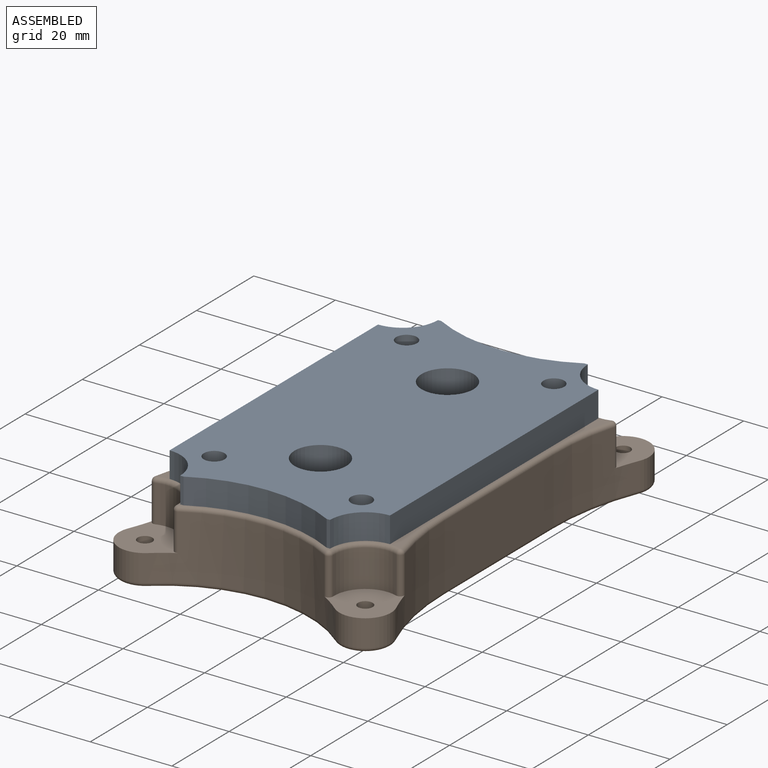
[diagram: assembled view]
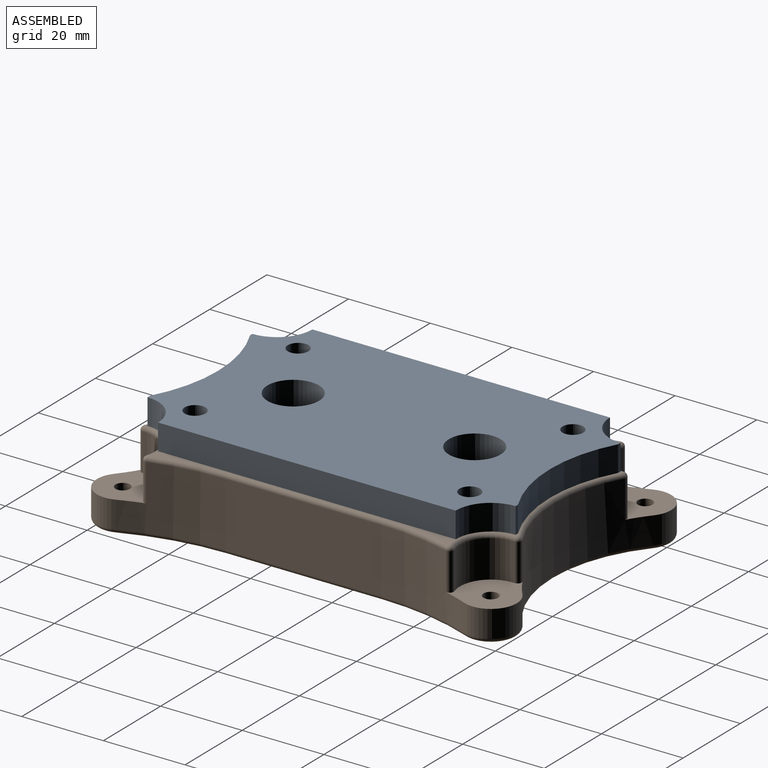
[diagram: assembled view, second angle]
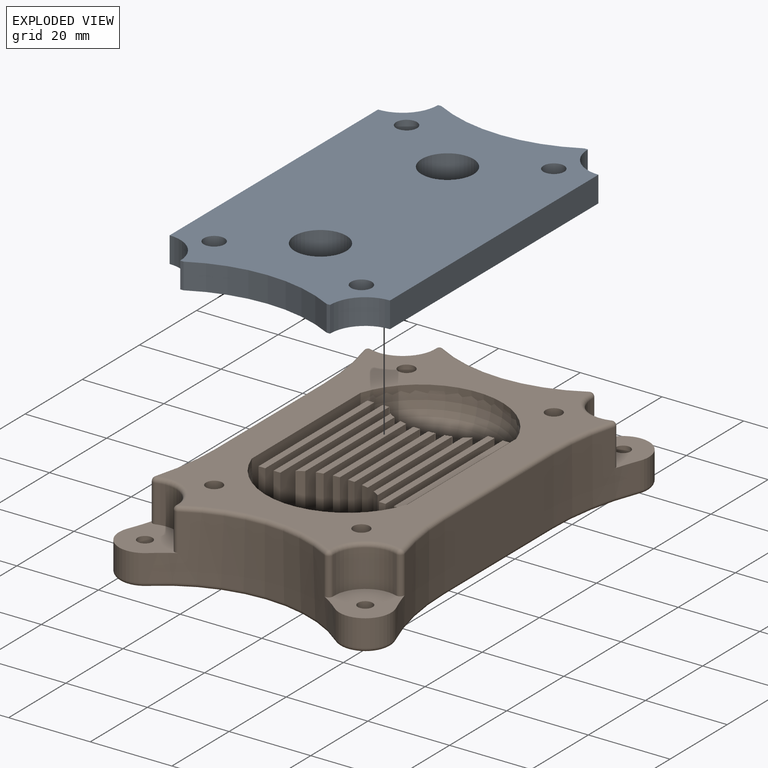
[diagram: exploded view]
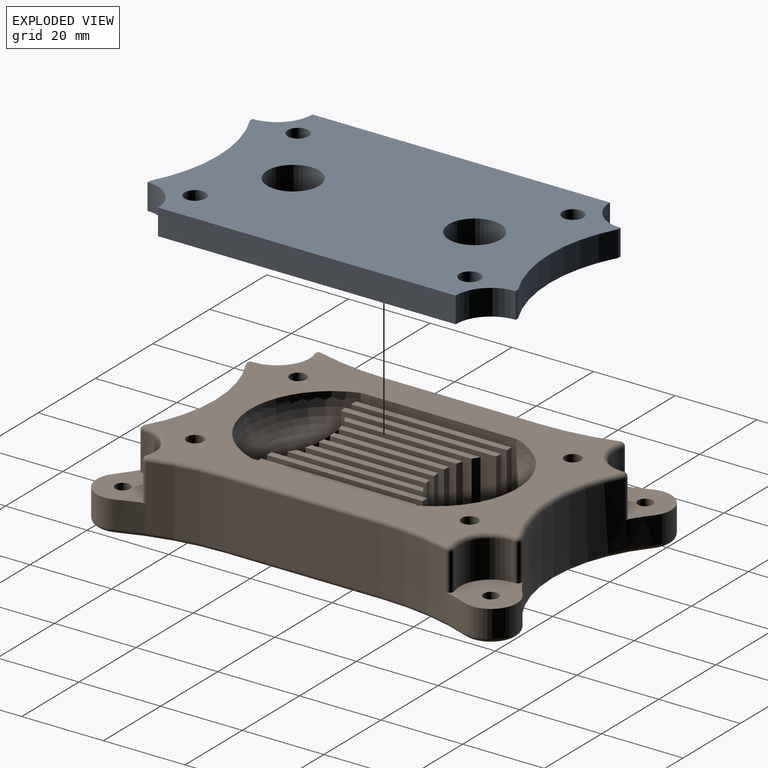
[diagram: exploded view, second angle]
ASSEMBLY  parts=2 mates=3
PART A: 20 faces, bbox 54x90.2x6.4 mm
  f0: plane 6.35x0.83mm, normal (0,1,0), area 5.3mm2, adj f6,f7,f13,f14
  f1: plane 6.35x0.83mm, normal (0,1,0), area 5.3mm2, adj f6,f7,f12,f13
  f2: plane 72.9x6.35mm, normal (-1,0,0), area 462.9mm2, adj f6,f7,f12,f17
  f3: plane 6.35x0.83mm, normal (0,-1,0), area 5.3mm2, adj f6,f7,f16,f17
  f4: plane 6.35x0.83mm, normal (0,-1,0), area 5.3mm2, adj f6,f7,f15,f16
  f5: plane 72.9x6.35mm, normal (1,0,0), area 462.9mm2, adj f6,f7,f14,f15
  f6: plane 90.17x53.98mm, normal (0,0,1), area 4087.8mm2, adj f0,f1,f2,f3,f4,f5,f8,f9
  f7: plane 90.17x53.98mm, normal (0,0,-1), area 4087.8mm2, adj f0,f1,f2,f3,f4,f5,f8,f9
  f8: cylinder r=2.55mm len=6.35mm, axis (0,0,1), area 101.8mm2, adj f6,f7
  f9: cylinder r=2.55mm len=6.35mm, axis (0,0,1), area 101.8mm2, adj f6,f7
  f10: cylinder r=2.55mm len=6.35mm, axis (0,0,1), area 101.8mm2, adj f6,f7
  f11: cylinder r=2.55mm len=6.35mm, axis (0,0,1), area 101.8mm2, adj f6,f7
  f12: cylinder r=8.64mm len=8.64mm, axis (0,0,1), area 86.1mm2, adj f1,f2,f6,f7
  f13: cylinder r=36.84mm len=35.03mm, axis (0,0,1), area 231.8mm2, adj f0,f1,f6,f7
  f14: cylinder r=8.64mm len=8.64mm, axis (0,0,1), area 86.1mm2, adj f0,f5,f6,f7
  f15: cylinder r=8.64mm len=8.64mm, axis (0,0,1), area 86.1mm2, adj f4,f5,f6,f7
  f16: cylinder r=36.84mm len=35.03mm, axis (0,0,1), area 231.8mm2, adj f3,f4,f6,f7
  f17: cylinder r=8.64mm len=8.64mm, axis (0,0,1), area 86.1mm2, adj f2,f3,f6,f7
  f18: cylinder r=6.35mm len=12.7mm, axis (0,0,1), area 253.4mm2, adj f6,f7
  f19: cylinder r=6.35mm len=12.7mm, axis (0,0,1), area 253.4mm2, adj f6,f7
PART B: 138 faces, bbox 67.7x103.9x19.1 mm
  f0: cylinder r=1.8mm len=7.62mm, axis (0,0,-1), area 86.3mm2, adj f7,f77
  f1: cylinder r=1.8mm len=7.62mm, axis (0,0,-1), area 86.3mm2, adj f7,f75
  f2: cylinder r=1.8mm len=7.62mm, axis (0,0,-1), area 86.3mm2, adj f7,f73
  f3: cylinder r=1.8mm len=7.62mm, axis (0,0,-1), area 86.3mm2, adj f7,f71
  f4: cylinder r=63.01mm len=23.65mm, axis (0,0,1), area 323.1mm2, adj f65,f66,f75,f81,f90,f91
  f5: cylinder r=63.01mm len=23.65mm, axis (0,0,1), area 323.1mm2, adj f60,f68,f71,f86,f114,f117
  f6: plane 91.12x59.59mm, normal (0,0,1), area 2251mm2, adj f43,f44,f56,f57,f91,f93,f95,f96
  f7: plane 100.84x64.64mm, normal (0,0,-1), area 3602.5mm2, adj f0,f1,f2,f3,f51,f52,f53,f54
  f8: plane 38.1x11.43mm, normal (1,0,0), area 435.5mm2, adj f9,f11,f12,f45
  f9: plane 11.43x1.65mm, normal (0,1,0), area 18.9mm2, adj f8,f10,f12,f45
  f10: plane 38.1x11.43mm, normal (-1,0,0), area 435.5mm2, adj f9,f11,f12,f45
  f11: plane 11.43x1.65mm, normal (0,-1,0), area 18.9mm2, adj f8,f10,f12,f45
  f12: plane 38.1x1.65mm, normal (0,0,1), area 62.9mm2, adj f8,f9,f10,f11
  f13: plane 38.1x11.43mm, normal (1,0,0), area 435.5mm2, adj f14,f16,f17,f45
  f14: plane 11.43x1.65mm, normal (0,1,0), area 18.9mm2, adj f13,f15,f17,f45
  f15: plane 38.1x11.43mm, normal (-1,0,0), area 435.5mm2, adj f14,f16,f17,f45
  f16: plane 11.43x1.65mm, normal (0,-1,0), area 18.9mm2, adj f13,f15,f17,f45
  f17: plane 38.1x1.65mm, normal (0,0,1), area 62.9mm2, adj f13,f14,f15,f16
  f18: plane 31.19x11.43mm, normal (1,0,0), area 356.5mm2, adj f20,f45,f128,f129
  f19: plane 33.23x11.43mm, normal (-1,0,0), area 379.8mm2, adj f20,f45,f128,f129
  f20: plane 33.23x1.65mm, normal (0,0,1), area 53mm2, adj f18,f19,f128,f129
  f21: plane 28.84x11.43mm, normal (1,0,0), area 329.6mm2, adj f23,f45,f126,f127
  f22: plane 29.65x11.43mm, normal (-1,0,0), area 338.9mm2, adj f23,f45,f126,f127
  f23: plane 29.65x1.65mm, normal (0,0,1), area 48.2mm2, adj f21,f22,f126,f127
  f24: plane 38.1x11.43mm, normal (1,0,0), area 435.5mm2, adj f25,f27,f28,f45
  f25: plane 11.43x1.65mm, normal (0,1,0), area 18.9mm2, adj f24,f26,f28,f45
  f26: plane 38.1x11.43mm, normal (-1,0,0), area 435.5mm2, adj f25,f27,f28,f45
  f27: plane 11.43x1.65mm, normal (0,-1,0), area 18.9mm2, adj f24,f26,f28,f45
  f28: plane 38.1x1.65mm, normal (0,0,1), area 62.9mm2, adj f24,f25,f26,f27
  f29: plane 38.1x11.43mm, normal (1,0,0), area 435.5mm2, adj f30,f32,f33,f45
  f30: plane 11.43x1.65mm, normal (0,1,0), area 18.9mm2, adj f29,f31,f33,f45
  f31: plane 38.1x11.43mm, normal (-1,0,0), area 435.5mm2, adj f30,f32,f33,f45
  f32: plane 11.43x1.65mm, normal (0,-1,0), area 18.9mm2, adj f29,f31,f33,f45
  f33: plane 38.1x1.65mm, normal (0,0,1), area 62.9mm2, adj f29,f30,f31,f32
  f34: plane 33.23x11.43mm, normal (1,0,0), area 379.8mm2, adj f36,f45,f124,f125
  f35: plane 31.19x11.43mm, normal (-1,0,0), area 356.5mm2, adj f36,f45,f124,f125
  f36: plane 33.23x1.65mm, normal (0,0,1), area 53mm2, adj f34,f35,f124,f125
  f37: plane 29.65x11.43mm, normal (1,0,0), area 338.9mm2, adj f39,f45,f122,f123
  f38: plane 28.84x11.43mm, normal (-1,0,0), area 329.6mm2, adj f39,f45,f122,f123
  f39: plane 29.65x1.65mm, normal (0,0,1), area 48.2mm2, adj f37,f38,f122,f123
  f40: plane 28.22x11.43mm, normal (1,0,0), area 322.6mm2, adj f42,f45,f120,f121
  f41: plane 27.98x11.43mm, normal (-1,0,0), area 319.8mm2, adj f42,f45,f120,f121
  f42: plane 28.22x1.65mm, normal (0,0,1), area 46.4mm2, adj f40,f41,f120,f121
  f43: plane 38.1x12.7mm, normal (1,0,0), area 483.9mm2, adj f6,f45,f46,f47,f56,f57
  f44: plane 38.1x12.7mm, normal (-1,0,0), area 483.9mm2, adj f6,f45,f46,f47,f56,f57
  f45: plane 53.88x38.1mm, normal (0,0,1), area 1319mm2, adj f8,f9,f10,f11,f13,f14,f15,f16
  f46: cylinder r=26.94mm len=38.1mm, axis (0,0,1), area 148.5mm2, adj f43,f44,f45,f58
  f47: cylinder r=26.94mm len=38.1mm, axis (0,0,1), area 148.5mm2, adj f43,f44,f45,f59
  f48: plane 27.98x11.43mm, normal (1,0,0), area 319.8mm2, adj f45,f50,f118,f119
  f49: plane 28.22x11.43mm, normal (-1,0,0), area 322.6mm2, adj f45,f50,f118,f119
  f50: plane 28.22x1.65mm, normal (0,0,1), area 46.4mm2, adj f48,f49,f118,f119
  f51: plane 38.1x1.27mm, normal (1,0,0), area 48.4mm2, adj f7,f52,f54,f55
  f52: plane 38.1x1.27mm, normal (0,1,0), area 48.4mm2, adj f7,f51,f53,f55
  f53: plane 38.1x1.27mm, normal (-1,0,0), area 48.4mm2, adj f7,f52,f54,f55
  f54: plane 38.1x1.27mm, normal (0,-1,0), area 48.4mm2, adj f7,f51,f53,f55
  f55: plane 38.1x38.1mm, normal (0,0,-1), area 1451.6mm2, adj f51,f52,f53,f54
  f56: cylinder r=20.08mm len=38.1mm, axis (0,0,1), area 62.4mm2, adj f6,f43,f44,f59
  f57: cylinder r=20.08mm len=38.1mm, axis (0,0,1), area 62.4mm2, adj f6,f43,f44,f58
  f58: torus R=8.65mm, axis (0,0,1), area 440.5mm2, adj f46,f57
  f59: torus R=8.65mm, axis (0,0,1), area 440.5mm2, adj f47,f56
  f60: cylinder r=6.35mm len=10.41mm, axis (0,0,1), area 111.1mm2, adj f5,f62,f71,f84
  f61: cylinder r=6.35mm len=10.41mm, axis (0,0,1), area 111.1mm2, adj f62,f67,f73,f80
  f62: cylinder r=35.83mm len=45.85mm, axis (0,0,1), area 670.4mm2, adj f60,f61,f71,f73,f82,f103,f108,f109
  f63: cylinder r=6.35mm len=10.41mm, axis (0,0,1), area 111.1mm2, adj f64,f69,f77,f87
  f64: cylinder r=35.83mm len=45.85mm, axis (0,0,1), area 670.4mm2, adj f63,f65,f75,f77,f85,f94,f100,f101
  f65: cylinder r=6.35mm len=10.41mm, axis (0,0,1), area 111.1mm2, adj f4,f64,f75,f83
  f66: plane 38.1x15.75mm, normal (1,0,0), area 600mm2, adj f4,f67,f79,f93
  f67: cylinder r=63.01mm len=23.65mm, axis (0,0,1), area 323.1mm2, adj f61,f66,f73,f78,f96,f97
  f68: plane 38.1x15.75mm, normal (-1,0,0), area 600mm2, adj f5,f69,f88,f115
  f69: cylinder r=63.01mm len=23.65mm, axis (0,0,1), area 323.1mm2, adj f63,f68,f77,f89,f106,f112
  f70: cylinder r=7.62mm len=10.1mm, axis (0,0,1), area 136.3mm2, adj f71,f109,f113,f114
  f71: plane 15.48x14.8mm, normal (0,0,1), area 144mm2, adj f3,f5,f60,f62,f70,f109,f114
  f72: cylinder r=7.62mm len=10.1mm, axis (0,0,1), area 136.3mm2, adj f73,f97,f102,f103
  f73: plane 15.48x14.8mm, normal (0,0,1), area 144mm2, adj f2,f61,f62,f67,f72,f97,f103
  f74: cylinder r=7.62mm len=10.1mm, axis (0,0,1), area 136.3mm2, adj f75,f90,f94,f95
  f75: plane 15.48x14.8mm, normal (0,0,1), area 144mm2, adj f1,f4,f64,f65,f74,f90,f94
  f76: cylinder r=7.62mm len=10.1mm, axis (0,0,1), area 136.3mm2, adj f77,f100,f106,f107
  f77: plane 15.48x14.8mm, normal (0,0,1), area 144mm2, adj f0,f63,f64,f69,f76,f100,f106
  f78: torus R=64.03mm, axis (0,0,-1), area 38.9mm2, adj f7,f67,f79,f80
  f79: cylinder r=1.02mm len=38.1mm, axis (0,-1,0), area 60.8mm2, adj f7,f66,f78,f81
  f80: torus R=5.33mm, axis (0,0,-1), area 25.3mm2, adj f7,f61,f78,f82
  f81: torus R=64.03mm, axis (0,0,-1), area 38.9mm2, adj f4,f7,f79,f83
  f82: torus R=36.84mm, axis (0,0,-1), area 80.2mm2, adj f7,f62,f80,f84
  f83: torus R=5.33mm, axis (0,0,-1), area 25.3mm2, adj f7,f65,f81,f85
  f84: torus R=5.33mm, axis (0,0,-1), area 25.3mm2, adj f7,f60,f82,f86
  f85: torus R=36.84mm, axis (0,0,-1), area 80.2mm2, adj f7,f64,f83,f87
  f86: torus R=64.03mm, axis (0,0,-1), area 38.9mm2, adj f5,f7,f84,f88
  f87: torus R=5.33mm, axis (0,0,-1), area 25.3mm2, adj f7,f63,f85,f89
  f88: cylinder r=1.02mm len=38.1mm, axis (0,1,0), area 60.8mm2, adj f7,f68,f86,f89
  f89: torus R=64.03mm, axis (0,0,-1), area 38.9mm2, adj f7,f69,f87,f88
  f90: cylinder r=1.02mm len=9.14mm, axis (0,0,1), area 20.3mm2, adj f4,f74,f75,f92
  f91: torus R=64.03mm, axis (0,0,1), area 28.6mm2, adj f4,f6,f92,f93
  f92: sphere r=1.02mm, area 2.3mm2, adj f90,f91,f95
  f93: cylinder r=1.02mm len=38.1mm, axis (0,1,0), area 60.8mm2, adj f6,f66,f91,f96
  f94: cylinder r=1.02mm len=9.14mm, axis (0,0,1), area 19.9mm2, adj f64,f74,f75,f98
  f95: torus R=8.64mm, axis (0,0,1), area 24.9mm2, adj f6,f74,f92,f98
  f96: torus R=64.03mm, axis (0,0,1), area 28.6mm2, adj f6,f67,f93,f99
  f97: cylinder r=1.02mm len=9.14mm, axis (0,0,1), area 20.3mm2, adj f67,f72,f73,f99
  f98: sphere r=1.02mm, area 2.2mm2, adj f94,f95,f101
  f99: sphere r=1.02mm, area 2.3mm2, adj f96,f97,f102
  f100: cylinder r=1.02mm len=9.14mm, axis (0,0,1), area 19.9mm2, adj f64,f76,f77,f104
  f101: torus R=36.84mm, axis (0,0,1), area 60.3mm2, adj f6,f64,f98,f104
  f102: torus R=8.64mm, axis (0,0,1), area 24.9mm2, adj f6,f72,f99,f105
  f103: cylinder r=1.02mm len=9.14mm, axis (0,0,1), area 19.9mm2, adj f62,f72,f73,f105
  f104: sphere r=1.02mm, area 2.2mm2, adj f100,f101,f107
  f105: sphere r=1.02mm, area 2.2mm2, adj f102,f103,f108
  f106: cylinder r=1.02mm len=9.14mm, axis (0,0,1), area 20.3mm2, adj f69,f76,f77,f110
  f107: torus R=8.64mm, axis (0,0,1), area 24.9mm2, adj f6,f76,f104,f110
  f108: torus R=36.84mm, axis (0,0,1), area 60.3mm2, adj f6,f62,f105,f111
  f109: cylinder r=1.02mm len=9.14mm, axis (0,0,1), area 19.9mm2, adj f62,f70,f71,f111
  f110: sphere r=1.02mm, area 2.3mm2, adj f106,f107,f112
  f111: sphere r=1.02mm, area 2.2mm2, adj f108,f109,f113
  f112: torus R=64.03mm, axis (0,0,1), area 28.6mm2, adj f6,f69,f110,f115
  f113: torus R=8.64mm, axis (0,0,1), area 24.9mm2, adj f6,f70,f111,f116
  f114: cylinder r=1.02mm len=9.14mm, axis (0,0,1), area 20.3mm2, adj f5,f70,f71,f116
  f115: cylinder r=1.02mm len=38.1mm, axis (0,-1,0), area 60.8mm2, adj f6,f68,f112,f117
  f116: sphere r=1.02mm, area 2.3mm2, adj f113,f114,f117
  f117: torus R=64.03mm, axis (0,0,1), area 28.6mm2, adj f5,f6,f115,f116
  f118: extruded ~11.43x1.65mm, area 18.9mm2, adj f45,f48,f49,f50
  f119: extruded ~11.43x1.65mm, area 18.9mm2, adj f45,f48,f49,f50
  f120: extruded ~11.43x1.65mm, area 18.9mm2, adj f40,f41,f42,f45
  f121: extruded ~11.43x1.65mm, area 18.9mm2, adj f40,f41,f42,f45
  f122: extruded ~11.43x1.65mm, area 19.4mm2, adj f37,f38,f39,f45
  f123: extruded ~11.43x1.65mm, area 19.4mm2, adj f37,f38,f39,f45
  f124: extruded ~11.43x1.65mm, area 22.2mm2, adj f34,f35,f36,f45
  f125: extruded ~11.43x1.65mm, area 22.2mm2, adj f34,f35,f36,f45
  f126: extruded ~11.43x1.65mm, area 19.4mm2, adj f21,f22,f23,f45
  f127: extruded ~11.43x1.65mm, area 19.4mm2, adj f21,f22,f23,f45
  f128: extruded ~11.43x1.65mm, area 22.2mm2, adj f18,f19,f20,f45
  f129: extruded ~11.43x1.65mm, area 22.2mm2, adj f18,f19,f20,f45
  f130: cone r=0mm half-angle=59deg, axis (0,0,1), area 14.9mm2, adj f131
  f131: cylinder r=2.02mm len=15.08mm, axis (0,0,1), area 191.3mm2, adj f6,f130
  f132: cone r=0mm half-angle=59deg, axis (0,0,1), area 14.9mm2, adj f133
  f133: cylinder r=2.02mm len=15.08mm, axis (0,0,1), area 191.3mm2, adj f6,f132
  f134: cone r=0mm half-angle=59deg, axis (0,0,1), area 14.9mm2, adj f135
  f135: cylinder r=2.02mm len=15.08mm, axis (0,0,1), area 191.3mm2, adj f6,f134
  f136: cone r=0mm half-angle=59deg, axis (0,0,1), area 14.9mm2, adj f137
  f137: cylinder r=2.02mm len=15.08mm, axis (0,0,1), area 191.3mm2, adj f6,f136
PLACE A t=(1.9,0.06,11)mm
PLACE B t=(1.9,0.06,-1.7)mm fixed
MATE cylindrical B.f134 <-> A.f10  axis (0,0,1) through (19.93,-33.6,7.83)mm
MATE planar B.f47 <-> A.f7  axis (0,0,1) through (1.9,0.06,7.83)mm
MATE cylindrical B.f130 <-> A.f8  axis (0,0,1) through (-16.13,33.71,7.83)mm
